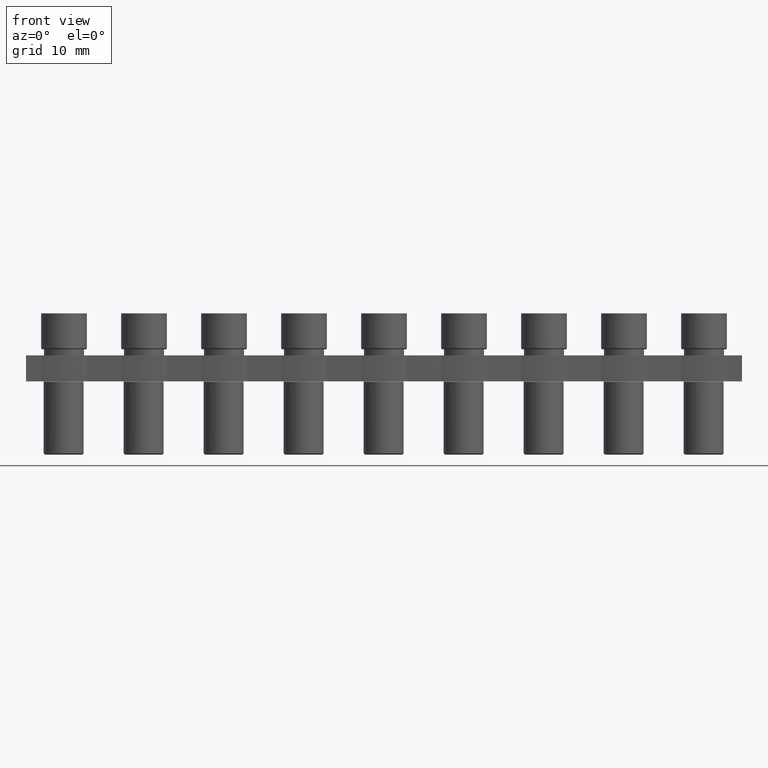
[diagram: clean part render]
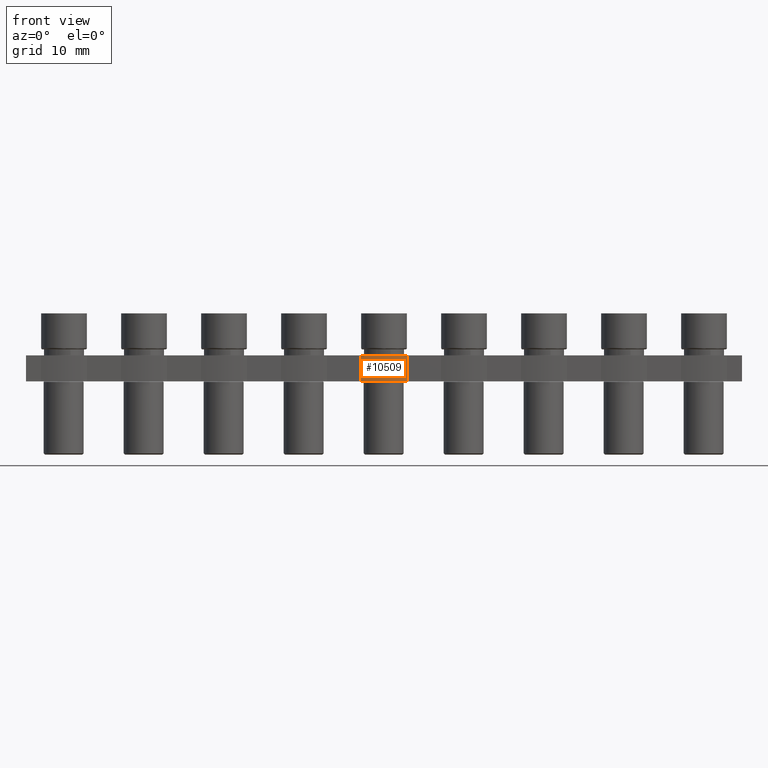
[diagram: same view with one face highlighted and labeled with its STEP entity id]
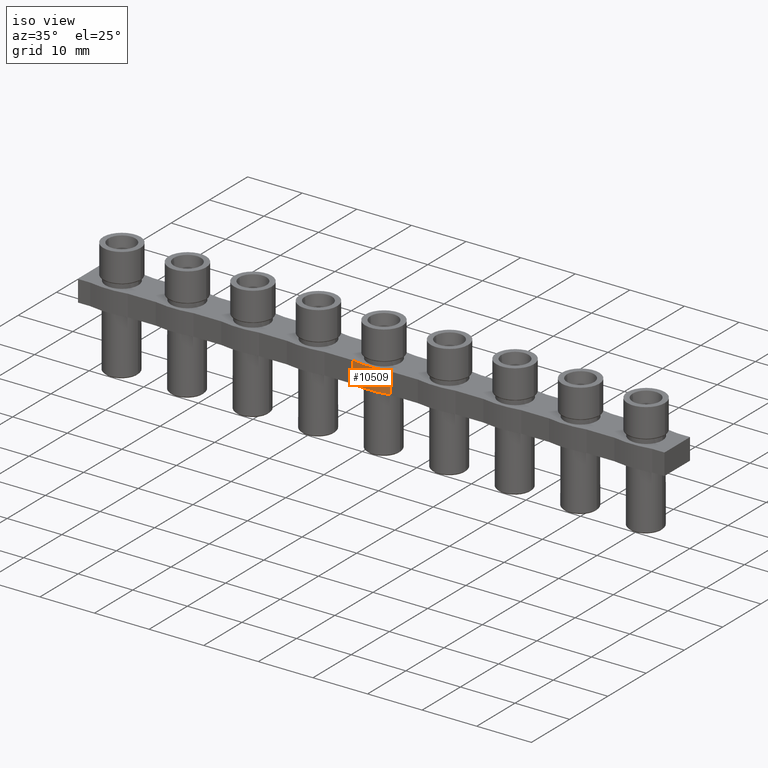
[diagram: same view with one face highlighted and labeled with its STEP entity id]
A machine part, front view. The second image highlights one B-rep face of the part: STEP entity #10509.
A second angle (iso view) of the same face is appended — the face is thin or edge-on in the first view.
In plain terms, the highlighted cylindrical surface (partial cylindrical patch) has radius 17.15 mm, axis along (0, 0, 1).
Its self-contained STEP definition (entity closure, byte-faithful):
#654 = CARTESIAN_POINT ( 'NONE',  ( -39.44710023062970800, -3.349999999999923300, -0.9000000000000014700 ) ) ;
#744 = CARTESIAN_POINT ( 'NONE',  ( -32.55289976937028500, -3.349999999999922400, -0.9000000000000014700 ) ) ;
#752 = CARTESIAN_POINT ( 'NONE',  ( -39.44710023062970800, -3.349999999999924600, -4.800000000000001600 ) ) ;
#767 = CARTESIAN_POINT ( 'NONE',  ( -32.55289976937029900, -3.349999999999923300, -4.800000000000001600 ) ) ;
#1328 = EDGE_CURVE ( 'NONE', #5314, #5327, #9722, .T. ) ;
#1625 = EDGE_CURVE ( 'NONE', #5314, #5282, #3420, .T. ) ;
#1659 = EDGE_CURVE ( 'NONE', #5268, #5327, #3444, .T. ) ;
#3403 = DIRECTION ( 'NONE',  ( 0.0000000000000000000, 0.0000000000000000000, 1.000000000000000000 ) ) ;
#3410 = CARTESIAN_POINT ( 'NONE',  ( -32.55289976937029200, -3.349999999999923700, -9.302499305941093900 ) ) ;
#3420 = LINE ( 'NONE', #3410, #10073 ) ;
#3428 = CARTESIAN_POINT ( 'NONE',  ( -39.44710023062970800, -3.349999999999924600, -9.302499305941093900 ) ) ;
#3441 = DIRECTION ( 'NONE',  ( -0.0000000000000000000, -0.0000000000000000000, -1.000000000000000000 ) ) ;
#3444 = LINE ( 'NONE', #3428, #10160 ) ;
#4750 = CIRCLE ( 'NONE', #4766, 17.15000000000021900 ) ;
#4766 = AXIS2_PLACEMENT_3D ( 'NONE', #12422, #12464, #12456 ) ;
#4829 = EDGE_LOOP ( 'NONE', ( #9972, #9932, #9994, #9993 ) ) ;
#5268 = VERTEX_POINT ( 'NONE', #654 ) ;
#5282 = VERTEX_POINT ( 'NONE', #744 ) ;
#5314 = VERTEX_POINT ( 'NONE', #767 ) ;
#5327 = VERTEX_POINT ( 'NONE', #752 ) ;
#7239 = DIRECTION ( 'NONE',  ( 1.000000000000000000, 0.0000000000000000000, 0.0000000000000000000 ) ) ;
#7248 = CYLINDRICAL_SURFACE ( 'NONE', #9065, 17.15000000000021900 ) ;
#7257 = FACE_OUTER_BOUND ( 'NONE', #4829, .T. ) ;
#7259 = DIRECTION ( 'NONE',  ( 0.0000000000000000000, 0.0000000000000000000, 1.000000000000000000 ) ) ;
#7265 = CARTESIAN_POINT ( 'NONE',  ( -36.00000000000000700, 13.45000000000007700, -9.302499305941093900 ) ) ;
#9065 = AXIS2_PLACEMENT_3D ( 'NONE', #7265, #7259, #7239 ) ;
#9178 = DIRECTION ( 'NONE',  ( 0.0000000000000000000, 0.0000000000000000000, -1.000000000000000000 ) ) ;
#9181 = CARTESIAN_POINT ( 'NONE',  ( -36.00000000000000700, 13.45000000000007700, -4.800000000000001600 ) ) ;
#9206 = DIRECTION ( 'NONE',  ( -1.000000000000000000, 0.0000000000000000000, 0.0000000000000000000 ) ) ;
#9722 = CIRCLE ( 'NONE', #9875, 17.15000000000021900 ) ;
#9875 = AXIS2_PLACEMENT_3D ( 'NONE', #9181, #9178, #9206 ) ;
#9932 = ORIENTED_EDGE ( 'NONE', *, *, #11424, .T. ) ;
#9972 = ORIENTED_EDGE ( 'NONE', *, *, #1625, .T. ) ;
#9993 = ORIENTED_EDGE ( 'NONE', *, *, #1328, .F. ) ;
#9994 = ORIENTED_EDGE ( 'NONE', *, *, #1659, .T. ) ;
#10073 = VECTOR ( 'NONE', #3403, 1000.000000000000000 ) ;
#10160 = VECTOR ( 'NONE', #3441, 1000.000000000000000 ) ;
#10509 = ADVANCED_FACE ( 'NONE', ( #7257 ), #7248, .T. ) ;
#11424 = EDGE_CURVE ( 'NONE', #5282, #5268, #4750, .T. ) ;
#12422 = CARTESIAN_POINT ( 'NONE',  ( -36.00000000000000700, 13.45000000000007700, -0.9000000000000014700 ) ) ;
#12456 = DIRECTION ( 'NONE',  ( -1.000000000000000000, 0.0000000000000000000, 0.0000000000000000000 ) ) ;
#12464 = DIRECTION ( 'NONE',  ( 0.0000000000000000000, 0.0000000000000000000, -1.000000000000000000 ) ) ;